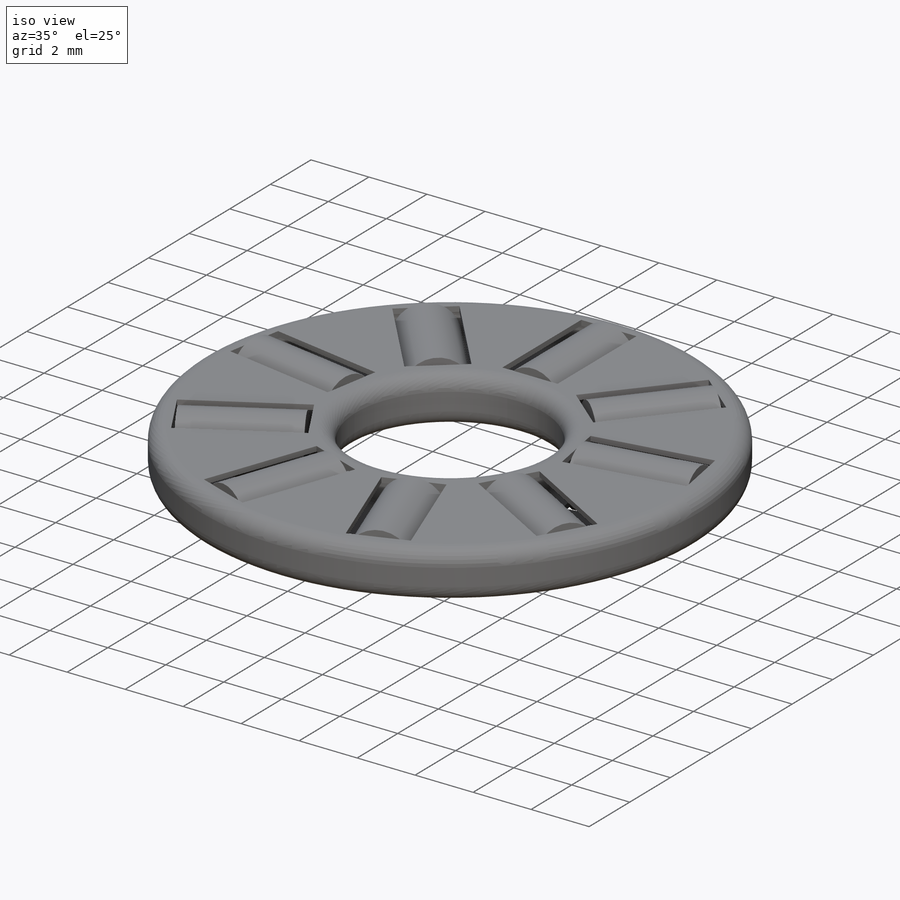
[diagram: iso view]
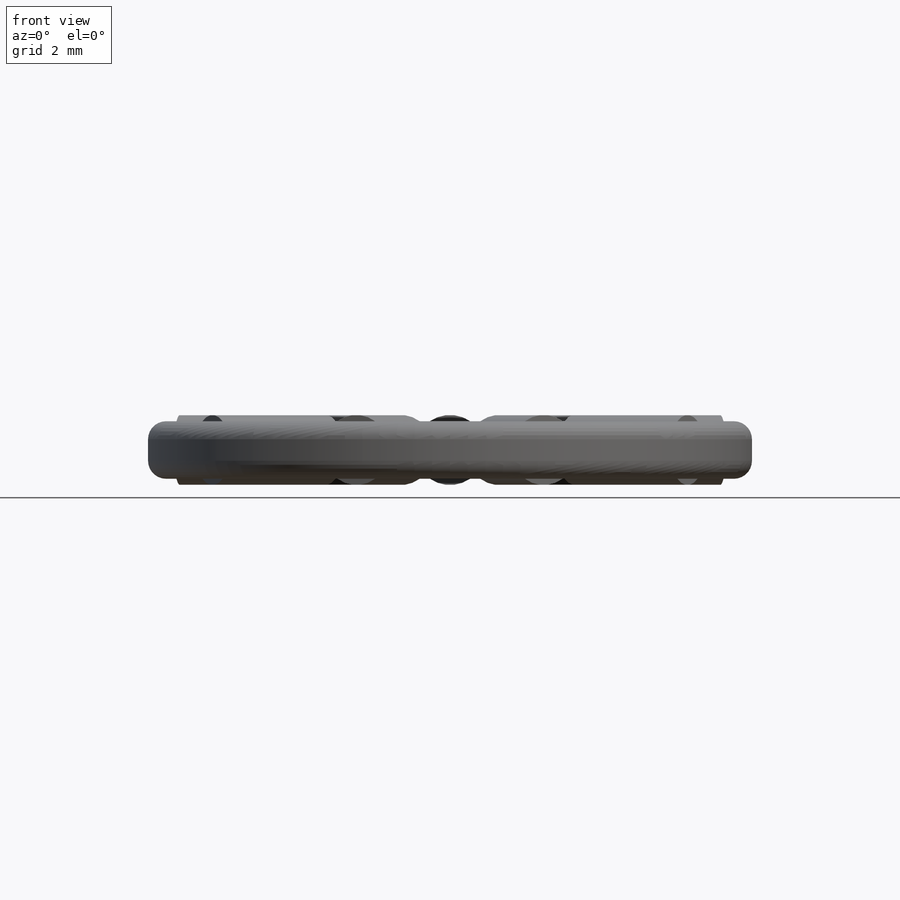
[diagram: front view]
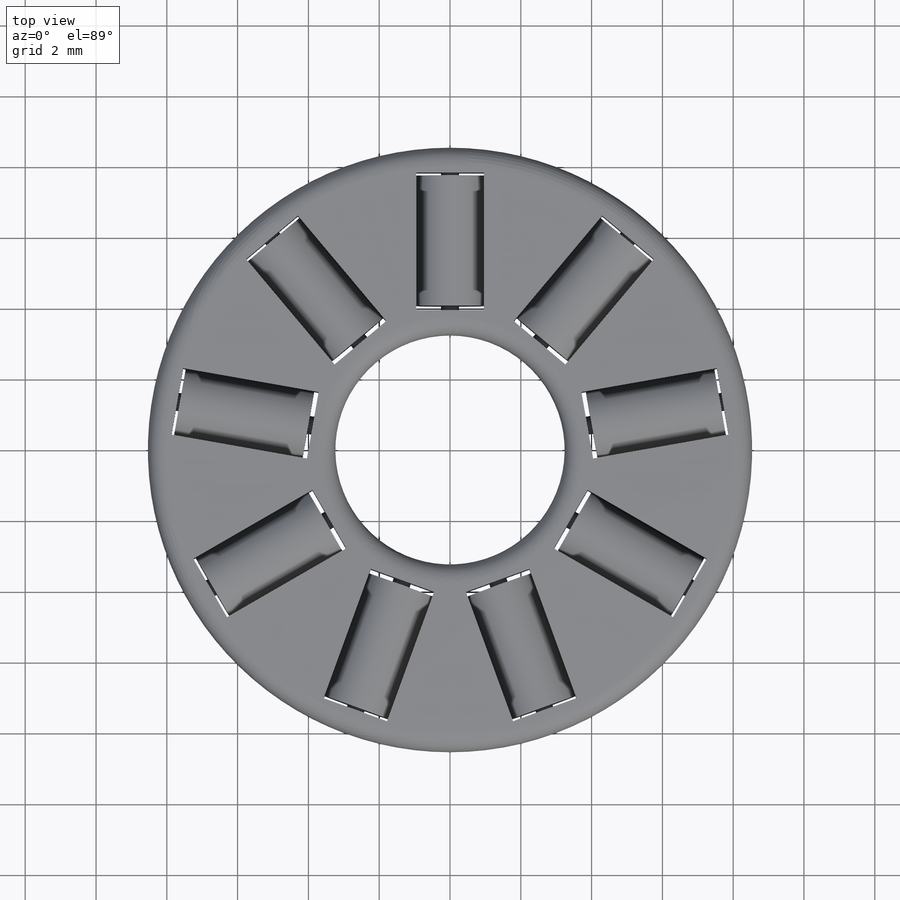
[diagram: top view]
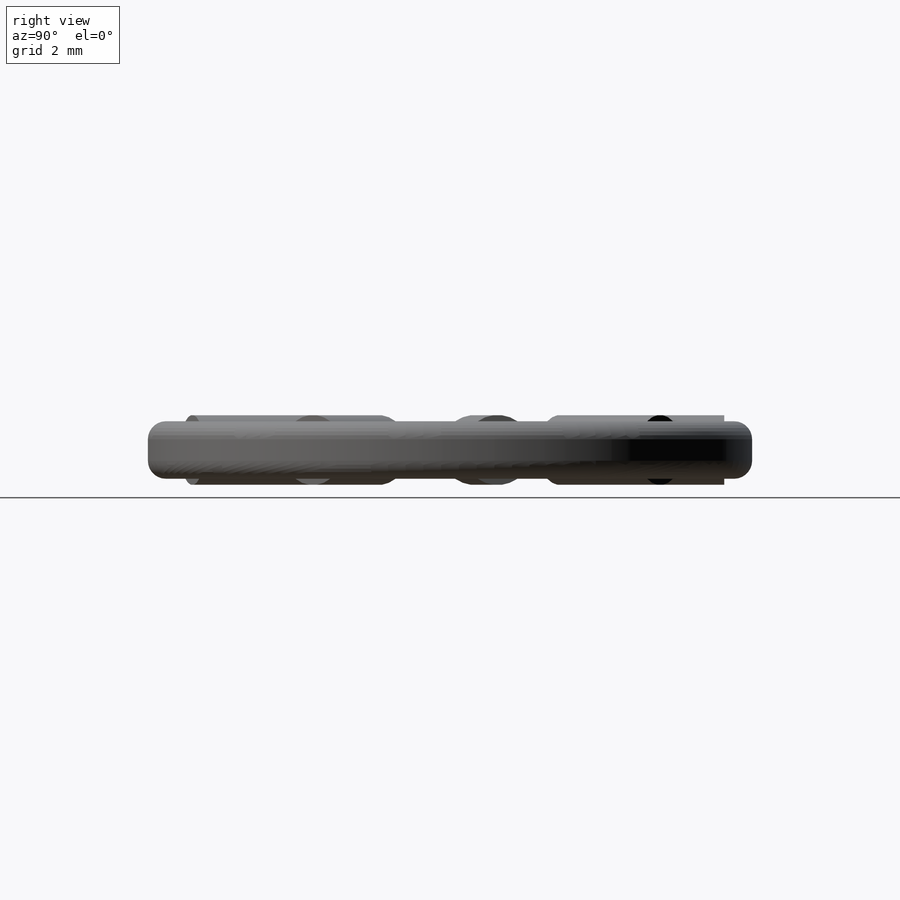
[diagram: right view]
SOLIDWORKS PART (.sldprt)
format: sldprt  version: not decoded by parser v0  size: 592,384 bytes
history: native  units: mm
features: sketch x3, revolve x2, pattern_circular x2, material x1, mirror x1, cut_extrude x1, shell x1 + 1 further entry (+12 scaffold rows collapsed)
feature tree (24):
  scaffold x12  (default folders/planes/origin — collapsed)
  material  "Material <not specified>"
  "Origin"  TABLE_REGEN_PARAMETER=1
  sketch  "Sketch3"  dims[D4=0.508mm D1=6.477mm D2=17.0688mm D3=0.8128mm]
  revolve  "Base-Revolve"  Angle=360deg
  mirror  "Mirror3"
  sketch  "Sketch4"  dims[c1.D1=5.842mm c1.D2=1.905mm c1.D3=3.937mm c2.D1=3.937mm c2.D3=7.8232mm]
  cut_extrude  "Cut-Extrude1"  [1 undecoded]
  shell  "Shell1"  Thickness=0.1778mm
  pattern_circular  "CirPattern3"  Count=9 Angle=40deg
  sketch  "Sketch5"  dims[c1.D1=12.827mm c1.D2=4.064mm c1.D3=7.747mm c1.D4=~20.336769mm c1.D5=0.254mm c1.D6=1.9812mm c2.D4=19.558mm c2.D1=0.6858mm c3.D4=0.6858mm]
  revolve  "Boss-Revolve2"  Angle=360deg
  pattern_circular  "CirPattern2"  Count=9 Angle=40deg
decode coverage: 8 of 10 modeling features carry decoded parameters; 1 rows unclassified (native names shown)
note: ~ marks probable driven/reference dimensions
note: 1 parameter value undecoded
note: suppression state not decoded; provenance and decode notes live in map.json
